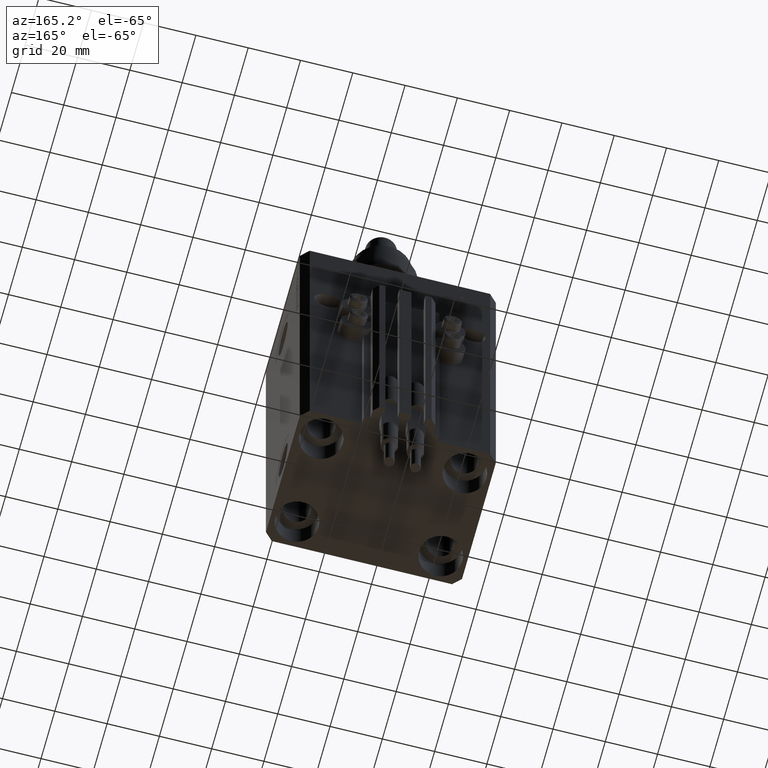
[diagram: clean part render]
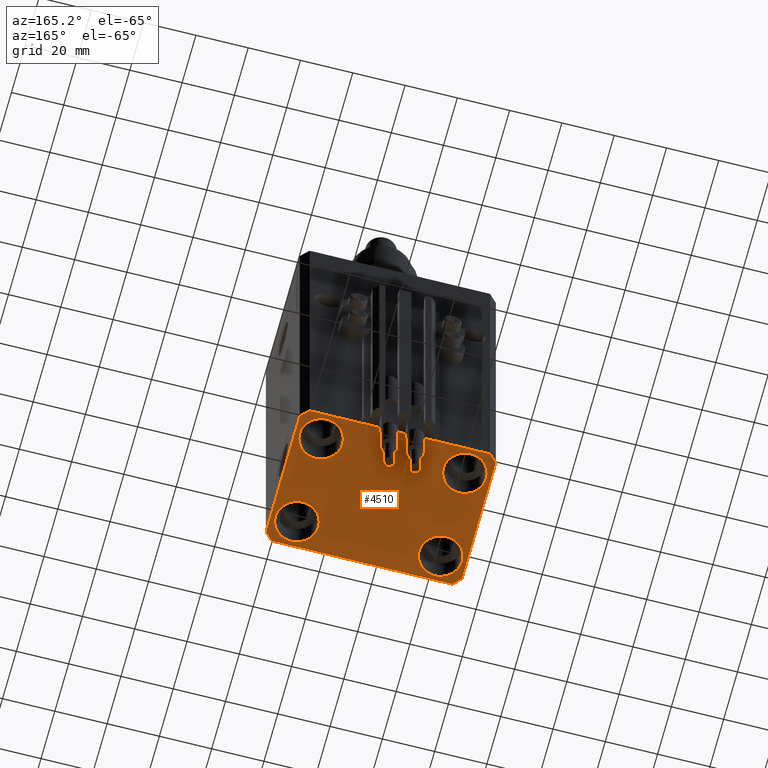
[diagram: same view with one face highlighted and labeled with its STEP entity id]
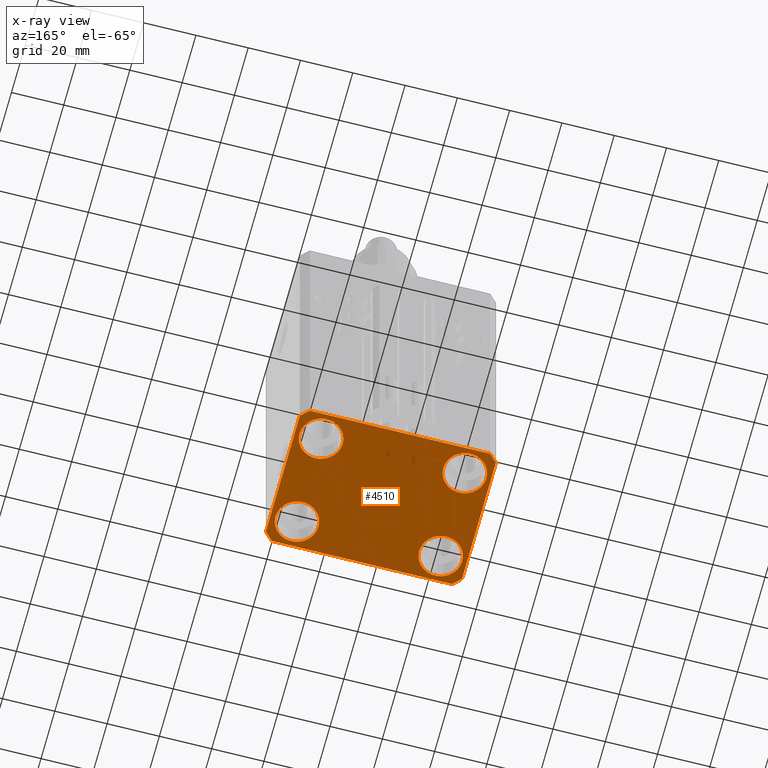
[diagram: x-ray of the same camera — body ghosted, the highlighted face saturated]
A machine part, auxiliary view. The second image highlights one B-rep face of the part: STEP entity #4510.
The next image is the same camera in x-ray: the body ghosted, the highlighted face saturated — about 1% of this face is hidden behind the body in this view.
In plain terms, the highlighted planar face has unit normal (0, 0, 1).
Its self-contained STEP definition (entity closure, byte-faithful):
#230 = CARTESIAN_POINT ( 'NONE',  ( 19.25000000000000000, -17.50000000000000000, -140.0000000000000000 ) ) ;
#1070 = CARTESIAN_POINT ( 'NONE',  ( -19.25000000000000355, 17.50000000000000000, -140.0000000000000000 ) ) ;
#1148 = LINE ( 'NONE', #35863, #5837 ) ;
#1283 = CARTESIAN_POINT ( 'NONE',  ( 0.000000000000000000, 0.000000000000000000, -140.0000000000000000 ) ) ;
#1444 = EDGE_CURVE ( 'NONE', #41592, #36704, #11385, .T. ) ;
#1526 = FACE_OUTER_BOUND ( 'NONE', #33541, .T. ) ;
#1602 = ORIENTED_EDGE ( 'NONE', *, *, #1444, .F. ) ;
#2008 = EDGE_CURVE ( 'NONE', #45901, #29853, #23948, .T. ) ;
#2045 = AXIS2_PLACEMENT_3D ( 'NONE', #1283, #13276, #40816 ) ;
#3085 = DIRECTION ( 'NONE',  ( -0.000000000000000000, -0.000000000000000000, 1.000000000000000000 ) ) ;
#3196 = LINE ( 'NONE', #18768, #47342 ) ;
#4057 = EDGE_LOOP ( 'NONE', ( #17013, #11640 ) ) ;
#4362 = EDGE_CURVE ( 'NONE', #11291, #33793, #32167, .T. ) ;
#4510 = ADVANCED_FACE ( 'NONE', ( #25260, #28331, #28576, #44157, #1526 ), #20682, .F. ) ;
#5456 = LINE ( 'NONE', #16699, #31615 ) ;
#5480 = CIRCLE ( 'NONE', #40507, 8.249999999999992895 ) ;
#5837 = VECTOR ( 'NONE', #9325, 1000.000000000000000 ) ;
#6552 = ORIENTED_EDGE ( 'NONE', *, *, #29115, .F. ) ;
#7006 = ORIENTED_EDGE ( 'NONE', *, *, #10454, .F. ) ;
#7285 = DIRECTION ( 'NONE',  ( -1.000000000000000000, 0.000000000000000000, 0.000000000000000000 ) ) ;
#7440 = CARTESIAN_POINT ( 'NONE',  ( 27.49999999999999645, 17.50000000000001066, -140.0000000000000000 ) ) ;
#7543 = CIRCLE ( 'NONE', #34404, 8.250000000000000000 ) ;
#7909 = CARTESIAN_POINT ( 'NONE',  ( 35.74999999999999289, 17.50000000000001066, -140.0000000000000000 ) ) ;
#9019 = DIRECTION ( 'NONE',  ( -0.000000000000000000, -0.000000000000000000, 1.000000000000000000 ) ) ;
#9248 = EDGE_CURVE ( 'NONE', #37392, #10716, #5480, .T. ) ;
#9277 = CARTESIAN_POINT ( 'NONE',  ( 27.50000000000000355, -17.50000000000000000, -140.0000000000000000 ) ) ;
#9325 = DIRECTION ( 'NONE',  ( 1.000000000000000000, 0.000000000000000000, 0.000000000000000000 ) ) ;
#9534 = DIRECTION ( 'NONE',  ( 1.000000000000000000, 0.000000000000000000, 0.000000000000000000 ) ) ;
#9722 = ORIENTED_EDGE ( 'NONE', *, *, #16041, .T. ) ;
#9853 = EDGE_LOOP ( 'NONE', ( #21548, #9722 ) ) ;
#9960 = AXIS2_PLACEMENT_3D ( 'NONE', #14973, #49457, #18315 ) ;
#10454 = EDGE_CURVE ( 'NONE', #17525, #20215, #5456, .T. ) ;
#10716 = VERTEX_POINT ( 'NONE', #7909 ) ;
#11107 = LINE ( 'NONE', #25926, #22060 ) ;
#11291 = VERTEX_POINT ( 'NONE', #11663 ) ;
#11385 = LINE ( 'NONE', #26941, #31262 ) ;
#11568 = ORIENTED_EDGE ( 'NONE', *, *, #44086, .F. ) ;
#11640 = ORIENTED_EDGE ( 'NONE', *, *, #19613, .T. ) ;
#11663 = CARTESIAN_POINT ( 'NONE',  ( -19.25000000000000355, -17.50000000000000000, -140.0000000000000000 ) ) ;
#12011 = CARTESIAN_POINT ( 'NONE',  ( 34.49999999999999289, -27.49999999999999645, -140.0000000000000000 ) ) ;
#13064 = VERTEX_POINT ( 'NONE', #38526 ) ;
#13276 = DIRECTION ( 'NONE',  ( 0.000000000000000000, 0.000000000000000000, 1.000000000000000000 ) ) ;
#13360 = ORIENTED_EDGE ( 'NONE', *, *, #45992, .F. ) ;
#13514 = CARTESIAN_POINT ( 'NONE',  ( 35.75000000000000711, -17.50000000000000000, -140.0000000000000000 ) ) ;
#14077 = EDGE_CURVE ( 'NONE', #33793, #11291, #48250, .T. ) ;
#14527 = CARTESIAN_POINT ( 'NONE',  ( -27.50000000000000355, 17.50000000000000000, -140.0000000000000000 ) ) ;
#14973 = CARTESIAN_POINT ( 'NONE',  ( -27.50000000000000355, -17.50000000000000000, -140.0000000000000000 ) ) ;
#15088 = EDGE_CURVE ( 'NONE', #29853, #45901, #7543, .T. ) ;
#15749 = CIRCLE ( 'NONE', #44273, 8.249999999999992895 ) ;
#16041 = EDGE_CURVE ( 'NONE', #10716, #37392, #15749, .T. ) ;
#16699 = CARTESIAN_POINT ( 'NONE',  ( 37.49999999999999289, -24.50000000000000000, -140.0000000000000000 ) ) ;
#17013 = ORIENTED_EDGE ( 'NONE', *, *, #36010, .T. ) ;
#17525 = VERTEX_POINT ( 'NONE', #47404 ) ;
#18313 = CARTESIAN_POINT ( 'NONE',  ( 37.50000000000051870, 24.49999999999995381, -140.0000000000000000 ) ) ;
#18315 = DIRECTION ( 'NONE',  ( 1.000000000000000000, 0.000000000000000000, 0.000000000000000000 ) ) ;
#18768 = CARTESIAN_POINT ( 'NONE',  ( 34.50000000000056843, 27.50000000000000000, -140.0000000000000000 ) ) ;
#18990 = EDGE_LOOP ( 'NONE', ( #42856, #40037 ) ) ;
#19062 = ORIENTED_EDGE ( 'NONE', *, *, #45981, .F. ) ;
#19318 = DIRECTION ( 'NONE',  ( 1.000000000000000000, 0.000000000000000000, 0.000000000000000000 ) ) ;
#19613 = EDGE_CURVE ( 'NONE', #30337, #31583, #28089, .T. ) ;
#19995 = ORIENTED_EDGE ( 'NONE', *, *, #15088, .T. ) ;
#20215 = VERTEX_POINT ( 'NONE', #18313 ) ;
#20314 = LINE ( 'NONE', #36110, #27033 ) ;
#20682 = PLANE ( 'NONE',  #2045 ) ;
#21019 = CARTESIAN_POINT ( 'NONE',  ( -37.49999999999999289, 24.50000000000000000, -140.0000000000000000 ) ) ;
#21475 = LINE ( 'NONE', #12011, #50303 ) ;
#21548 = ORIENTED_EDGE ( 'NONE', *, *, #9248, .T. ) ;
#21707 = VERTEX_POINT ( 'NONE', #25116 ) ;
#21756 = CARTESIAN_POINT ( 'NONE',  ( -37.49999999999999289, -24.50000000000000000, -140.0000000000000000 ) ) ;
#22060 = VECTOR ( 'NONE', #41746, 1000.000000000000114 ) ;
#23118 = DIRECTION ( 'NONE',  ( -0.7071067811865471286, -0.7071067811865479058, 0.000000000000000000 ) ) ;
#23689 = CIRCLE ( 'NONE', #29400, 8.250000000000000000 ) ;
#23904 = CARTESIAN_POINT ( 'NONE',  ( 27.49999999999999645, 17.50000000000001066, -140.0000000000000000 ) ) ;
#23948 = CIRCLE ( 'NONE', #44345, 8.250000000000000000 ) ;
#24086 = DIRECTION ( 'NONE',  ( 1.000000000000000000, 0.000000000000000000, 0.000000000000000000 ) ) ;
#24645 = ORIENTED_EDGE ( 'NONE', *, *, #35223, .F. ) ;
#24839 = DIRECTION ( 'NONE',  ( -0.000000000000000000, -0.000000000000000000, 1.000000000000000000 ) ) ;
#25116 = CARTESIAN_POINT ( 'NONE',  ( 34.50000000000056843, 27.50000000000000000, -140.0000000000000000 ) ) ;
#25260 = FACE_BOUND ( 'NONE', #18990, .T. ) ;
#25926 = CARTESIAN_POINT ( 'NONE',  ( 37.50000000000051870, 24.49999999999995381, -140.0000000000000000 ) ) ;
#26941 = CARTESIAN_POINT ( 'NONE',  ( -34.49999999999999289, 27.50000000000000000, -140.0000000000000000 ) ) ;
#27033 = VECTOR ( 'NONE', #28700, 1000.000000000000000 ) ;
#27701 = CARTESIAN_POINT ( 'NONE',  ( -35.75000000000000711, 17.50000000000000000, -140.0000000000000000 ) ) ;
#28089 = CIRCLE ( 'NONE', #28930, 8.250000000000000000 ) ;
#28331 = FACE_BOUND ( 'NONE', #4057, .T. ) ;
#28576 = FACE_BOUND ( 'NONE', #9853, .T. ) ;
#28700 = DIRECTION ( 'NONE',  ( 0.000000000000000000, -1.000000000000000000, 0.000000000000000000 ) ) ;
#28930 = AXIS2_PLACEMENT_3D ( 'NONE', #40407, #50445, #9534 ) ;
#29115 = EDGE_CURVE ( 'NONE', #47308, #17525, #21475, .T. ) ;
#29400 = AXIS2_PLACEMENT_3D ( 'NONE', #9277, #24839, #44985 ) ;
#29853 = VERTEX_POINT ( 'NONE', #1070 ) ;
#30337 = VERTEX_POINT ( 'NONE', #13514 ) ;
#30643 = VERTEX_POINT ( 'NONE', #33834 ) ;
#30655 = DIRECTION ( 'NONE',  ( 1.000000000000000000, 0.000000000000000000, 0.000000000000000000 ) ) ;
#30752 = CARTESIAN_POINT ( 'NONE',  ( -35.75000000000000711, -17.50000000000000000, -140.0000000000000000 ) ) ;
#31262 = VECTOR ( 'NONE', #23118, 1000.000000000000000 ) ;
#31583 = VERTEX_POINT ( 'NONE', #230 ) ;
#31615 = VECTOR ( 'NONE', #32239, 1000.000000000000000 ) ;
#32167 = CIRCLE ( 'NONE', #47658, 8.250000000000000000 ) ;
#32239 = DIRECTION ( 'NONE',  ( 1.076236605503979380E-14, 1.000000000000000000, 0.000000000000000000 ) ) ;
#33227 = LINE ( 'NONE', #21756, #50448 ) ;
#33413 = DIRECTION ( 'NONE',  ( 1.000000000000000000, 0.000000000000000000, 0.000000000000000000 ) ) ;
#33541 = EDGE_LOOP ( 'NONE', ( #11568, #46839, #7006, #6552, #13360, #24645, #19062, #1602 ) ) ;
#33793 = VERTEX_POINT ( 'NONE', #30752 ) ;
#33834 = CARTESIAN_POINT ( 'NONE',  ( -37.49999999999999289, -24.50000000000000000, -140.0000000000000000 ) ) ;
#33907 = DIRECTION ( 'NONE',  ( -0.000000000000000000, -0.000000000000000000, 1.000000000000000000 ) ) ;
#34404 = AXIS2_PLACEMENT_3D ( 'NONE', #36312, #9019, #24086 ) ;
#35223 = EDGE_CURVE ( 'NONE', #30643, #13064, #33227, .T. ) ;
#35863 = CARTESIAN_POINT ( 'NONE',  ( -34.49999999999998579, -27.49999999999999645, -140.0000000000000000 ) ) ;
#36010 = EDGE_CURVE ( 'NONE', #31583, #30337, #23689, .T. ) ;
#36110 = CARTESIAN_POINT ( 'NONE',  ( -37.49999999999999289, 24.50000000000000000, -140.0000000000000000 ) ) ;
#36312 = CARTESIAN_POINT ( 'NONE',  ( -27.50000000000000355, 17.50000000000000000, -140.0000000000000000 ) ) ;
#36704 = VERTEX_POINT ( 'NONE', #21019 ) ;
#37062 = DIRECTION ( 'NONE',  ( 0.7071067811865483499, -0.7071067811865466846, 0.000000000000000000 ) ) ;
#37392 = VERTEX_POINT ( 'NONE', #47013 ) ;
#38042 = CARTESIAN_POINT ( 'NONE',  ( -27.50000000000000355, -17.50000000000000000, -140.0000000000000000 ) ) ;
#38526 = CARTESIAN_POINT ( 'NONE',  ( -34.49999999999998579, -27.49999999999999645, -140.0000000000000000 ) ) ;
#39214 = DIRECTION ( 'NONE',  ( -0.000000000000000000, -0.000000000000000000, 1.000000000000000000 ) ) ;
#39671 = CARTESIAN_POINT ( 'NONE',  ( -34.49999999999999289, 27.50000000000000000, -140.0000000000000000 ) ) ;
#40037 = ORIENTED_EDGE ( 'NONE', *, *, #4362, .T. ) ;
#40407 = CARTESIAN_POINT ( 'NONE',  ( 27.50000000000000355, -17.50000000000000000, -140.0000000000000000 ) ) ;
#40507 = AXIS2_PLACEMENT_3D ( 'NONE', #7440, #49814, #30655 ) ;
#40816 = DIRECTION ( 'NONE',  ( 1.000000000000000000, 0.000000000000000000, -0.000000000000000000 ) ) ;
#40957 = ORIENTED_EDGE ( 'NONE', *, *, #2008, .T. ) ;
#41080 = EDGE_LOOP ( 'NONE', ( #40957, #19995 ) ) ;
#41592 = VERTEX_POINT ( 'NONE', #39671 ) ;
#41746 = DIRECTION ( 'NONE',  ( -0.7071067811865356934, 0.7071067811865594521, 0.000000000000000000 ) ) ;
#42139 = DIRECTION ( 'NONE',  ( 1.000000000000000000, 0.000000000000000000, 0.000000000000000000 ) ) ;
#42856 = ORIENTED_EDGE ( 'NONE', *, *, #14077, .T. ) ;
#43187 = EDGE_CURVE ( 'NONE', #20215, #21707, #11107, .T. ) ;
#44086 = EDGE_CURVE ( 'NONE', #21707, #41592, #3196, .T. ) ;
#44157 = FACE_BOUND ( 'NONE', #41080, .T. ) ;
#44273 = AXIS2_PLACEMENT_3D ( 'NONE', #23904, #39214, #19318 ) ;
#44345 = AXIS2_PLACEMENT_3D ( 'NONE', #14527, #33907, #33413 ) ;
#44985 = DIRECTION ( 'NONE',  ( 1.000000000000000000, 0.000000000000000000, 0.000000000000000000 ) ) ;
#45901 = VERTEX_POINT ( 'NONE', #27701 ) ;
#45950 = DIRECTION ( 'NONE',  ( 0.7071067811865474617, 0.7071067811865474617, 0.000000000000000000 ) ) ;
#45981 = EDGE_CURVE ( 'NONE', #36704, #30643, #20314, .T. ) ;
#45992 = EDGE_CURVE ( 'NONE', #13064, #47308, #1148, .T. ) ;
#46839 = ORIENTED_EDGE ( 'NONE', *, *, #43187, .F. ) ;
#47013 = CARTESIAN_POINT ( 'NONE',  ( 19.25000000000000000, 17.50000000000001066, -140.0000000000000000 ) ) ;
#47308 = VERTEX_POINT ( 'NONE', #48825 ) ;
#47342 = VECTOR ( 'NONE', #7285, 1000.000000000000000 ) ;
#47404 = CARTESIAN_POINT ( 'NONE',  ( 37.49999999999999289, -24.50000000000000000, -140.0000000000000000 ) ) ;
#47658 = AXIS2_PLACEMENT_3D ( 'NONE', #38042, #3085, #42139 ) ;
#48250 = CIRCLE ( 'NONE', #9960, 8.250000000000000000 ) ;
#48825 = CARTESIAN_POINT ( 'NONE',  ( 34.49999999999999289, -27.49999999999999645, -140.0000000000000000 ) ) ;
#49457 = DIRECTION ( 'NONE',  ( -0.000000000000000000, -0.000000000000000000, 1.000000000000000000 ) ) ;
#49814 = DIRECTION ( 'NONE',  ( -0.000000000000000000, -0.000000000000000000, 1.000000000000000000 ) ) ;
#50303 = VECTOR ( 'NONE', #45950, 1000.000000000000114 ) ;
#50445 = DIRECTION ( 'NONE',  ( -0.000000000000000000, -0.000000000000000000, 1.000000000000000000 ) ) ;
#50448 = VECTOR ( 'NONE', #37062, 1000.000000000000000 ) ;